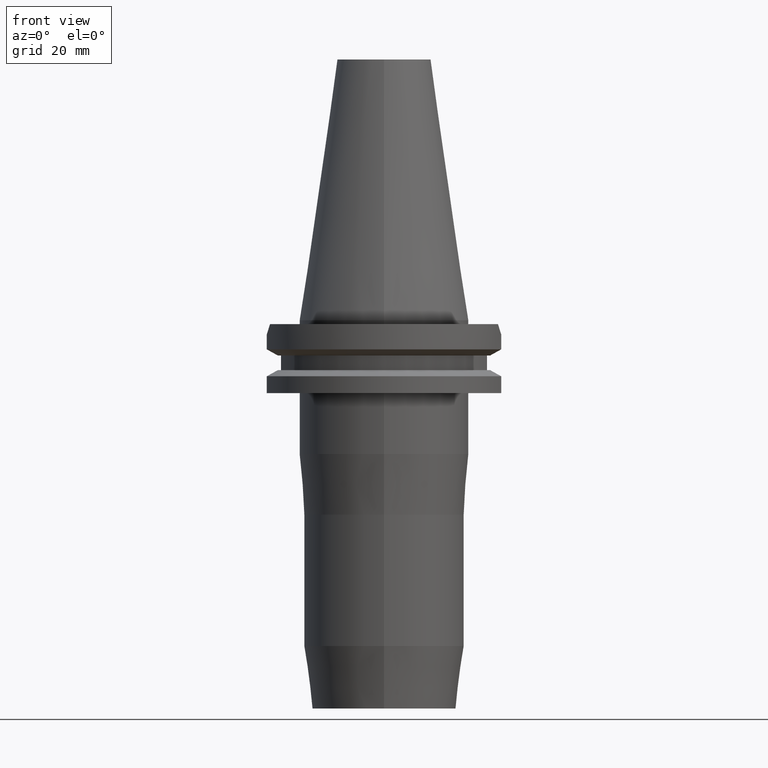
[diagram: clean part render]
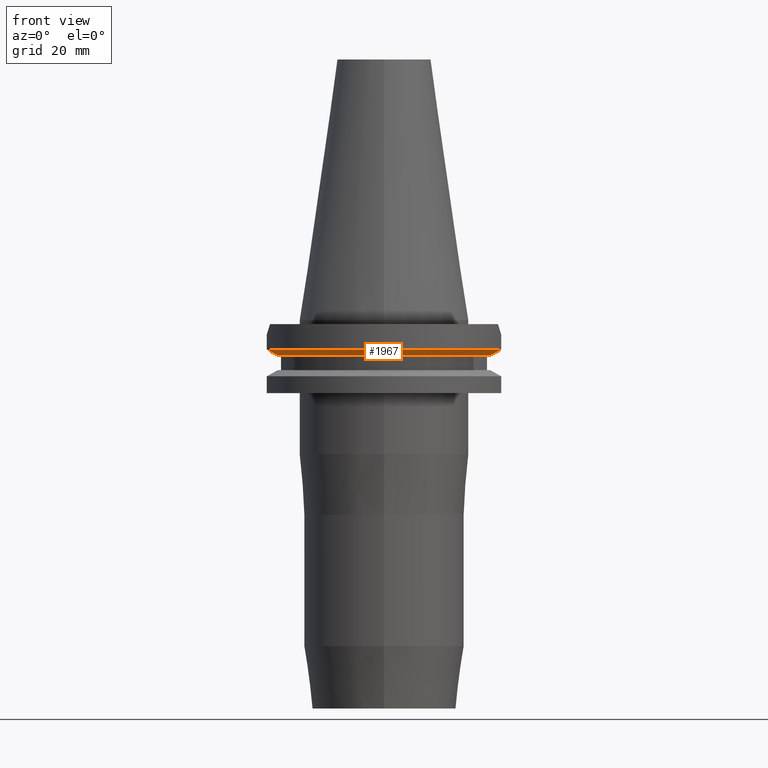
[diagram: same view with one face highlighted and labeled with its STEP entity id]
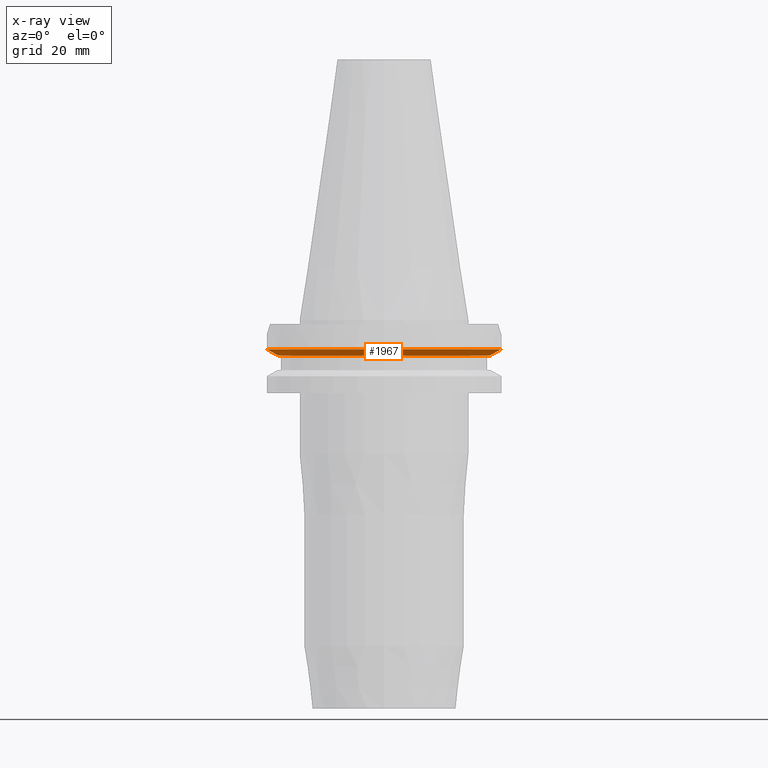
[diagram: x-ray of the same camera — body ghosted, the highlighted face saturated]
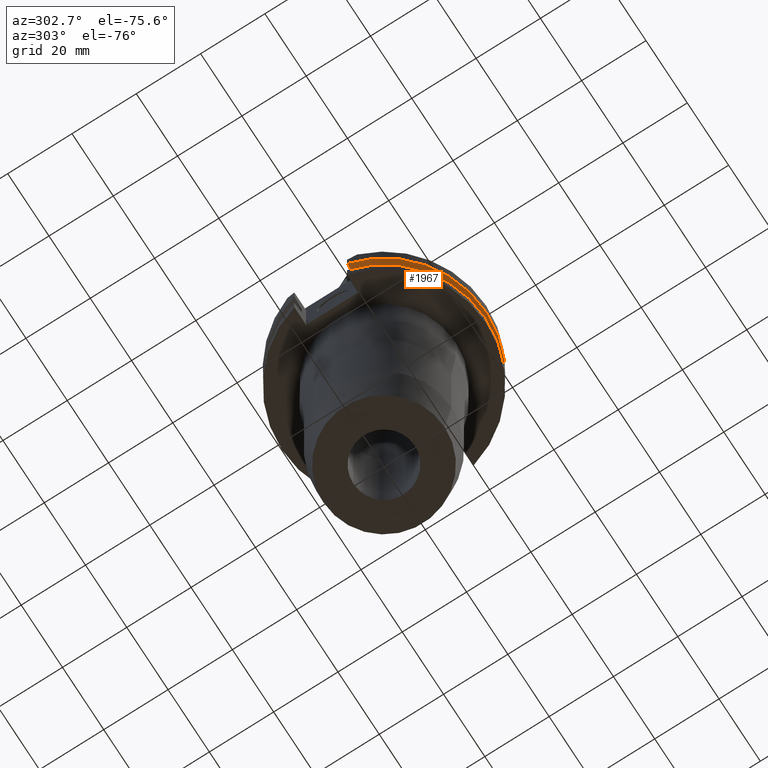
[diagram: same view with one face highlighted and labeled with its STEP entity id]
A machine part, front view. The second image highlights one B-rep face of the part: STEP entity #1967.
The next image is the same camera in x-ray: the body ghosted, the highlighted face saturated — about 0% of this face is hidden behind the body in this view.
A second angle (auxiliary view) of the same face is appended — the face is thin or edge-on in the first view.
In plain terms, the highlighted conical surface has half-angle 60 deg.
Its self-contained STEP definition (entity closure, byte-faithful):
#619=CARTESIAN_POINT('',(2.778616453850E1,-8.190000190920E0,-9.207500000001E0));
#620=CARTESIAN_POINT('',(2.810749132278E1,-8.190000190920E0,-9.029550869185E0));
#621=CARTESIAN_POINT('',(2.874991655705E1,-8.189999991758E0,-8.673260600819E0));
#622=CARTESIAN_POINT('',(2.971304241111E1,-8.189999742466E0,-8.137892857314E0));
#623=CARTESIAN_POINT('',(3.035472199995E1,-8.190000606407E0,-7.780262222225E0));
#624=CARTESIAN_POINT('',(3.067550146399E1,-8.190000606407E0,-7.601327811715E0));
#657=CARTESIAN_POINT('',(-3.067550165946E1,-8.189999874276E0,
-7.601334354445E0));
#658=CARTESIAN_POINT('',(-3.035472638233E1,-8.189999874276E0,
-7.780266432872E0));
#659=CARTESIAN_POINT('',(-2.971302863466E1,-8.189999973375E0,
-8.137871223015E0));
#660=CARTESIAN_POINT('',(-2.874990664155E1,-8.190000281772E0,
-8.673237294194E0));
#661=CARTESIAN_POINT('',(-2.810748974259E1,-8.189999360282E0,
-9.029558666210E0));
#662=CARTESIAN_POINT('',(-2.778617704607E1,-8.189999360282E0,
-9.207500000001E0));
#674=CARTESIAN_POINT('',(0.E0,1.121722380079E-14,-7.601333230926E0));
#675=DIRECTION('',(0.E0,0.E0,1.E0));
#676=DIRECTION('',(-9.661575315241E-1,-2.579527559055E-1,0.E0));
#677=AXIS2_PLACEMENT_3D('',#674,#675,#676);
#682=CARTESIAN_POINT('',(0.E0,1.121722380079E-14,-7.601333230926E0));
#683=DIRECTION('',(0.E0,0.E0,1.E0));
#684=DIRECTION('',(0.E0,-1.E0,0.E0));
#685=AXIS2_PLACEMENT_3D('',#682,#683,#684);
#713=CARTESIAN_POINT('',(0.E0,1.121722380079E-14,-9.207500000003E0));
#714=DIRECTION('',(0.E0,0.E0,1.E0));
#715=DIRECTION('',(-9.592008904640E-1,-2.827253998727E-1,0.E0));
#716=AXIS2_PLACEMENT_3D('',#713,#714,#715);
#721=CARTESIAN_POINT('',(0.E0,1.121722380079E-14,-9.207500000003E0));
#722=DIRECTION('',(0.E0,0.E0,1.E0));
#723=DIRECTION('',(0.E0,-1.E0,0.E0));
#724=AXIS2_PLACEMENT_3D('',#721,#722,#723);
#1369=CARTESIAN_POINT('',(2.778616453850E1,-8.190000190920E0,
-9.207500000001E0));
#1370=VERTEX_POINT('',#1369);
#1371=VERTEX_POINT('',#624);
#1388=CARTESIAN_POINT('',(-3.067550165946E1,-8.189999874276E0,
-7.601334354445E0));
#1389=VERTEX_POINT('',#1388);
#1390=VERTEX_POINT('',#662);
#1434=CARTESIAN_POINT('',(-3.537899182731E-14,-2.896803755053E1,
-9.207500000003E0));
#1435=VERTEX_POINT('',#1434);
#1440=CARTESIAN_POINT('',(0.E0,-3.175E1,-7.601333230926E0));
#1441=VERTEX_POINT('',#1440);
#1952=CARTESIAN_POINT('',(0.E0,1.121722380079E-14,-8.404416615464E0));
#1953=DIRECTION('',(0.E0,0.E0,1.E0));
#1954=DIRECTION('',(0.E0,1.E0,0.E0));
#1955=AXIS2_PLACEMENT_3D('',#1952,#1953,#1954);
#1956=CONICAL_SURFACE('',#1955,3.035901877527E1,6.E1);
#1957=ORIENTED_EDGE('',*,*,#1904,.F.);
#1959=ORIENTED_EDGE('',*,*,#1958,.F.);
#1961=ORIENTED_EDGE('',*,*,#1960,.F.);
#1962=ORIENTED_EDGE('',*,*,#1938,.F.);
#1963=ORIENTED_EDGE('',*,*,#1865,.T.);
#1964=ORIENTED_EDGE('',*,*,#1863,.T.);
#1965=EDGE_LOOP('',(#1957,#1959,#1961,#1962,#1963,#1964));
#1966=FACE_OUTER_BOUND('',#1965,.F.);
#625=B_SPLINE_CURVE_WITH_KNOTS('',3,(#619,#620,#621,#622,#623,#624),
.UNSPECIFIED.,.F.,.F.,(4,1,1,4),(0.E0,3.333333333333E-1,6.666666666667E-1,1.E0),
.UNSPECIFIED.);
#663=B_SPLINE_CURVE_WITH_KNOTS('',3,(#657,#658,#659,#660,#661,#662),
.UNSPECIFIED.,.F.,.F.,(4,1,1,4),(0.E0,3.333333333333E-1,6.666666666667E-1,1.E0),
.UNSPECIFIED.);
#678=CIRCLE('',#677,3.175E1);
#686=CIRCLE('',#685,3.175E1);
#717=CIRCLE('',#716,2.896803755053E1);
#725=CIRCLE('',#724,2.896803755053E1);
#1863=EDGE_CURVE('',#1441,#1371,#686,.T.);
#1865=EDGE_CURVE('',#1389,#1441,#678,.T.);
#1904=EDGE_CURVE('',#1370,#1371,#625,.T.);
#1938=EDGE_CURVE('',#1389,#1390,#663,.T.);
#1958=EDGE_CURVE('',#1435,#1370,#725,.T.);
#1960=EDGE_CURVE('',#1390,#1435,#717,.T.);
#1967=ADVANCED_FACE('',(#1966),#1956,.T.);